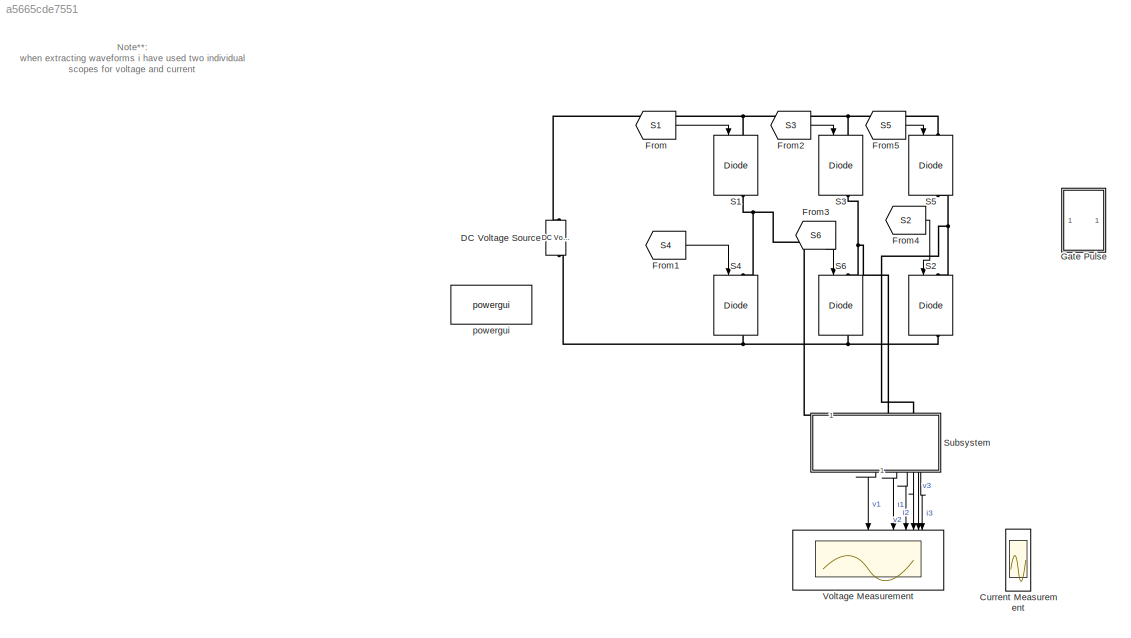
MODEL slx_a5665cde7551
KIND model
CONFIG AbsTol = auto
CONFIG EnableMultiTasking = off
CONFIG FixedStep = auto
CONFIG MaxStep = 1e-6
CONFIG MinStep = auto
CONFIG RelTol = 1e-4
CONFIG SampleTimeConstraint = Unconstrained
CONFIG SolverName = ode23tb
CONFIG StartTime = 0
CONFIG StopTime = 60e-3
BLOCK [Scope] Current Measurement
  Floating = off
  NumInputPorts = 3
  ScopeSpecificationString = Simulink.scopes.TimeScopeBlockCfg('CurrentConfiguration', extmgr.ConfigurationSet(extmgr.Configuration('Core','General UI',true),extmgr.Configuration('Core','Source UI',true),extmgr.Configuration('Sources','WiredSimulink',true,'DataLoggingVariableName','ScopeData1'),extmgr.Configuration('Visuals','Time Domain',true,'SerializedDisplays',{struct('MinYLimReal','-1.00000','MaxYLimReal','1.00000','YLab...<+2915ch>
BLOCK [Reference] DC Voltage Source  REF=spsDCVoltageSourceLib/DC Voltage Source
  LibrarySourceBlock = sps_lib/Sources/DC Voltage Source
  NameLocation = left
  SourceBlock = spsDCVoltageSourceLib/DC Voltage Source
  SourceType = DC Voltage Source
BLOCK [From] From
  GotoTag = S1
  TagVisibility = global
BLOCK [From] From1
  GotoTag = S4
  TagVisibility = global
BLOCK [From] From2
  GotoTag = S3
  TagVisibility = global
BLOCK [From] From3
  GotoTag = S6
  TagVisibility = global
BLOCK [From] From4
  GotoTag = S2
  TagVisibility = global
BLOCK [From] From5
  GotoTag = S5
  TagVisibility = global
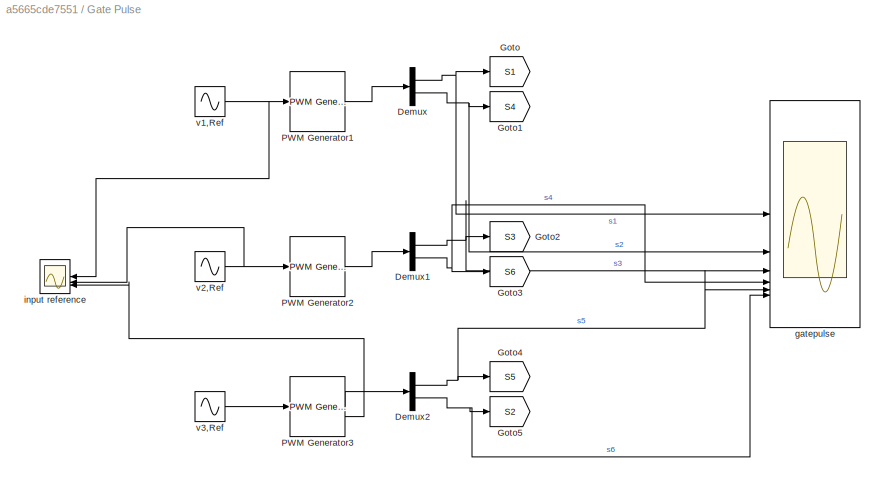
BLOCK [SubSystem] Gate Pulse
BLOCK [Demux] Gate Pulse/Demux
  Outputs = 2
BLOCK [Demux] Gate Pulse/Demux1
  Outputs = 2
BLOCK [Demux] Gate Pulse/Demux2
  Outputs = 2
BLOCK [Goto] Gate Pulse/Goto
  GotoTag = S1
  TagVisibility = global
BLOCK [Goto] Gate Pulse/Goto1
  GotoTag = S4
  TagVisibility = global
BLOCK [Goto] Gate Pulse/Goto2
  GotoTag = S3
  TagVisibility = global
BLOCK [Goto] Gate Pulse/Goto3
  GotoTag = S6
  TagVisibility = global
BLOCK [Goto] Gate Pulse/Goto4
  GotoTag = S5
  TagVisibility = global
BLOCK [Goto] Gate Pulse/Goto5
  GotoTag = S2
  TagVisibility = global
BLOCK [Reference] Gate Pulse/PWM Generator1  REF=spsPWMGenerator2LevelLib/PWM Generator
(2-Level)
  LibrarySourceBlock = sps_lib/Power Electronics/Power Electronics Control/PWM Generator\n(2-Level)
  SourceBlock = spsPWMGenerator2LevelLib/PWM Generator\n(2-Level)
  SourceType = PWM Generator (2-Level)
BLOCK [Reference] Gate Pulse/PWM Generator2  REF=spsPWMGenerator2LevelLib/PWM Generator
(2-Level)
  LibrarySourceBlock = sps_lib/Power Electronics/Power Electronics Control/PWM Generator\n(2-Level)
  SourceBlock = spsPWMGenerator2LevelLib/PWM Generator\n(2-Level)
  SourceType = PWM Generator (2-Level)
BLOCK [Reference] Gate Pulse/PWM Generator3  REF=spsPWMGenerator2LevelLib/PWM Generator
(2-Level)
  LibrarySourceBlock = sps_lib/Power Electronics/Power Electronics Control/PWM Generator\n(2-Level)
  SourceBlock = spsPWMGenerator2LevelLib/PWM Generator\n(2-Level)
  SourceType = PWM Generator (2-Level)
BLOCK [Scope] Gate Pulse/gatepulse
  Floating = off
  NumInputPorts = 6
  ScopeSpecificationString = Simulink.scopes.TimeScopeBlockCfg('CurrentConfiguration', extmgr.ConfigurationSet(extmgr.Configuration('Core','General UI',true,'FigureColor',[1 1 1]),extmgr.Configuration('Core','Source UI',true),extmgr.Configuration('Sources','WiredSimulink',true,'DataLoggingVariableName','ScopeData2'),extmgr.Configuration('Visuals','Time Domain',true,'SerializedDisplays',{struct('MinYLimReal','-0.125','MaxYLimR...<+5497ch>
BLOCK [Scope] Gate Pulse/input reference
  Floating = off
  NameLocation = top
  NumInputPorts = 3
  ScopeSpecificationString = Simulink.scopes.TimeScopeBlockCfg('CurrentConfiguration', extmgr.ConfigurationSet(extmgr.Configuration('Core','General UI',true,'FigureColor',[1 1 1]),extmgr.Configuration('Core','Source UI',true),extmgr.Configuration('Sources','WiredSimulink',true,'DataLoggingVariableName','ScopeData1'),extmgr.Configuration('Visuals','Time Domain',true,'SerializedDisplays',{struct('MinYLimReal','-1.25','MaxYLimRe...<+1954ch>
BLOCK [Sin] Gate Pulse/v1,Ref
  Amplitude = ma
  Frequency = 2*pi*50
  SampleTime = 0
BLOCK [Sin] Gate Pulse/v2,Ref
  Amplitude = ma
  Frequency = 2*50*pi
  Phase = -2*pi/3
  SampleTime = 0
BLOCK [Sin] Gate Pulse/v3,Ref
  Amplitude = ma
  Frequency = 2*pi*50
  Phase = +2*pi/3
  SampleTime = 0
BLOCK [Reference] S1  REF=spsIGBTDiodeLib/IGBT//Diode
  LibrarySourceBlock = sps_lib/Power Electronics/IGBT//Diode
  NameLocation = left
  SourceBlock = spsIGBTDiodeLib/IGBT//Diode
  SourceType = IGBT/Diode
BLOCK [Reference] S2  REF=spsIGBTDiodeLib/IGBT//Diode
  LibrarySourceBlock = sps_lib/Power Electronics/IGBT//Diode
  NameLocation = left
  SourceBlock = spsIGBTDiodeLib/IGBT//Diode
  SourceType = IGBT/Diode
BLOCK [Reference] S3  REF=spsIGBTDiodeLib/IGBT//Diode
  LibrarySourceBlock = sps_lib/Power Electronics/IGBT//Diode
  NameLocation = left
  SourceBlock = spsIGBTDiodeLib/IGBT//Diode
  SourceType = IGBT/Diode
BLOCK [Reference] S4  REF=spsIGBTDiodeLib/IGBT//Diode
  LibrarySourceBlock = sps_lib/Power Electronics/IGBT//Diode
  NameLocation = left
  SourceBlock = spsIGBTDiodeLib/IGBT//Diode
  SourceType = IGBT/Diode
BLOCK [Reference] S5  REF=spsIGBTDiodeLib/IGBT//Diode
  LibrarySourceBlock = sps_lib/Power Electronics/IGBT//Diode
  NameLocation = left
  SourceBlock = spsIGBTDiodeLib/IGBT//Diode
  SourceType = IGBT/Diode
BLOCK [Reference] S6  REF=spsIGBTDiodeLib/IGBT//Diode
  LibrarySourceBlock = sps_lib/Power Electronics/IGBT//Diode
  NameLocation = left
  SourceBlock = spsIGBTDiodeLib/IGBT//Diode
  SourceType = IGBT/Diode
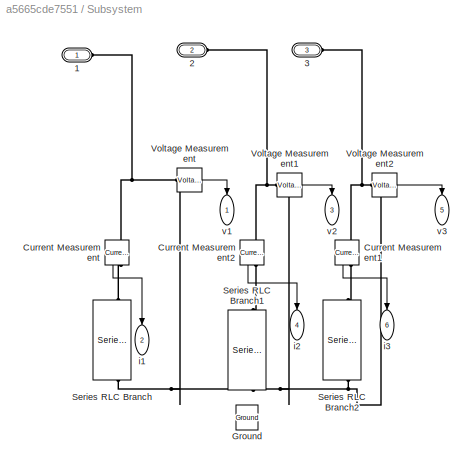
BLOCK [SubSystem] Subsystem
  NameLocation = left
BLOCK [PMIOPort] Subsystem/1
  Side = Left
BLOCK [PMIOPort] Subsystem/2
  Port = 2
  Side = Left
BLOCK [PMIOPort] Subsystem/3
  Port = 3
  Side = Left
BLOCK [Reference] Subsystem/Current Measurement  REF=spsCurrentMeasurementLib/Current Measurement
  LibrarySourceBlock = sps_lib/Sensors and Measurements/Current Measurement
  NameLocation = right
  SourceBlock = spsCurrentMeasurementLib/Current Measurement
  SourceType = Current Measurement
  UserDataPersistent = on
BLOCK [Reference] Subsystem/Current Measurement1  REF=spsCurrentMeasurementLib/Current Measurement
  LibrarySourceBlock = sps_lib/Sensors and Measurements/Current Measurement
  NameLocation = left
  SourceBlock = spsCurrentMeasurementLib/Current Measurement
  SourceType = Current Measurement
  UserDataPersistent = on
BLOCK [Reference] Subsystem/Current Measurement2  REF=spsCurrentMeasurementLib/Current Measurement
  LibrarySourceBlock = sps_lib/Sensors and Measurements/Current Measurement
  NameLocation = left
  SourceBlock = spsCurrentMeasurementLib/Current Measurement
  SourceType = Current Measurement
  UserDataPersistent = on
BLOCK [Reference] Subsystem/Ground  REF=spsGroundLib/Ground
  LibrarySourceBlock = sps_lib/Utilities/Ground
  NameLocation = right
  SourceBlock = spsGroundLib/Ground
  SourceType = Ground
BLOCK [Reference] Subsystem/Series RLC Branch  REF=spsSeriesRLCBranchLib/Series RLC Branch
  LibrarySourceBlock = sps_lib/Passives/Series RLC Branch
  NameLocation = left
  SourceBlock = spsSeriesRLCBranchLib/Series RLC Branch
  SourceType = Series RLC Branch
BLOCK [Reference] Subsystem/Series RLC Branch1  REF=spsSeriesRLCBranchLib/Series RLC Branch
  LibrarySourceBlock = sps_lib/Passives/Series RLC Branch
  NameLocation = left
  SourceBlock = spsSeriesRLCBranchLib/Series RLC Branch
  SourceType = Series RLC Branch
BLOCK [Reference] Subsystem/Series RLC Branch2  REF=spsSeriesRLCBranchLib/Series RLC Branch
  LibrarySourceBlock = sps_lib/Passives/Series RLC Branch
  NameLocation = left
  SourceBlock = spsSeriesRLCBranchLib/Series RLC Branch
  SourceType = Series RLC Branch
BLOCK [Reference] Subsystem/Voltage Measurement  REF=spsVoltageMeasurementLib/Voltage Measurement
  LibrarySourceBlock = sps_lib/Sensors and Measurements/Voltage Measurement
  SourceBlock = spsVoltageMeasurementLib/Voltage Measurement
  SourceType = Voltage Measurement
  UserDataPersistent = on
BLOCK [Reference] Subsystem/Voltage Measurement1  REF=spsVoltageMeasurementLib/Voltage Measurement
  LibrarySourceBlock = sps_lib/Sensors and Measurements/Voltage Measurement
  SourceBlock = spsVoltageMeasurementLib/Voltage Measurement
  SourceType = Voltage Measurement
  UserDataPersistent = on
BLOCK [Reference] Subsystem/Voltage Measurement2  REF=spsVoltageMeasurementLib/Voltage Measurement
  LibrarySourceBlock = sps_lib/Sensors and Measurements/Voltage Measurement
  SourceBlock = spsVoltageMeasurementLib/Voltage Measurement
  SourceType = Voltage Measurement
  UserDataPersistent = on
BLOCK [Outport] Subsystem/i1
  NameLocation = left
  Port = 2
BLOCK [Outport] Subsystem/i2
  NameLocation = left
  Port = 4
BLOCK [Outport] Subsystem/i3
  NameLocation = left
  Port = 6
BLOCK [Outport] Subsystem/v1
  NameLocation = left
BLOCK [Outport] Subsystem/v2
  NameLocation = left
  Port = 3
BLOCK [Outport] Subsystem/v3
  NameLocation = left
  Port = 5
BLOCK [Scope] Voltage Measurement
  Floating = off
  NameLocation = left
  NumInputPorts = 6
  ScopeSpecificationString = Simulink.scopes.TimeScopeBlockCfg('CurrentConfiguration', extmgr.ConfigurationSet(extmgr.Configuration('Core','General UI',true,'FigureColor',[1 1 1]),extmgr.Configuration('Core','Source UI',true),extmgr.Configuration('Sources','WiredSimulink',true,'DataLoggingVariableName','ScopeData1','DataLogging',true,'DataLoggingSaveFormat','StructureWithTime'),extmgr.Configuration('Visuals','Time Domain',tru...<+3504ch>
BLOCK [Reference] powergui  REF=sps_lib/powergui
  LibrarySourceBlock = sps_lib/powergui
  Priority = 1
  SourceBlock = sps_lib/powergui
  SourceType = PSB option menu block
ANNOTATION (root): Note**: when extracting waveforms i have used two individual scopes for voltage and current
LINE From1:1 -> S4:1
LINE From2:1 -> S3:1
LINE From3:1 -> S6:1
LINE From4:1 -> S2:1
LINE From5:1 -> S5:1
LINE From:1 -> S1:1
NET Gate Pulse/Demux1:1 -> Gate Pulse/Goto2:1, Gate Pulse/gatepulse:3
NET Gate Pulse/Demux1:2 -> Gate Pulse/Goto3:1, Gate Pulse/gatepulse:4
NET Gate Pulse/Demux2:1 -> Gate Pulse/Goto4:1, Gate Pulse/gatepulse:5
NET Gate Pulse/Demux2:2 -> Gate Pulse/Goto5:1, Gate Pulse/gatepulse:6
NET Gate Pulse/Demux:1 -> Gate Pulse/Goto:1, Gate Pulse/gatepulse:1
NET Gate Pulse/Demux:2 -> Gate Pulse/Goto1:1, Gate Pulse/gatepulse:2
LINE Gate Pulse/PWM Generator1:1 -> Gate Pulse/Demux:1
LINE Gate Pulse/PWM Generator2:1 -> Gate Pulse/Demux1:1
LINE Gate Pulse/PWM Generator3:1 -> Gate Pulse/Demux2:1
LINE Gate Pulse/PWM Generator3:2 -> Gate Pulse/input reference:3
NET Gate Pulse/v1,Ref:1 -> Gate Pulse/PWM Generator1:1, Gate Pulse/input reference:1
NET Gate Pulse/v2,Ref:1 -> Gate Pulse/PWM Generator2:1, Gate Pulse/input reference:2
LINE Gate Pulse/v3,Ref:1 -> Gate Pulse/PWM Generator3:1
LINE Subsystem/Current Measurement1:1 -> Subsystem/i3:1
LINE Subsystem/Current Measurement2:1 -> Subsystem/i2:1
LINE Subsystem/Current Measurement:1 -> Subsystem/i1:1
LINE Subsystem/Voltage Measurement1:1 -> Subsystem/v2:1
LINE Subsystem/Voltage Measurement2:1 -> Subsystem/v3:1
LINE Subsystem/Voltage Measurement:1 -> Subsystem/v1:1
LINE Subsystem:1 -> Voltage Measurement:1
LINE Subsystem:2 -> Voltage Measurement:2
LINE Subsystem:3 -> Voltage Measurement:3
LINE Subsystem:4 -> Voltage Measurement:4
LINE Subsystem:5 -> Voltage Measurement:5
LINE Subsystem:6 -> Voltage Measurement:6
PNET net1: DC Voltage Source:LConn1 -- S2:RConn1 -- S4:RConn1 -- S6:RConn1
PNET net2: DC Voltage Source:RConn1 -- S1:LConn1 -- S3:LConn1 -- S5:LConn1
PNET net3: S1:RConn1 -- S4:LConn1 -- Subsystem:LConn1
PNET net4: S2:LConn1 -- S5:RConn1 -- Subsystem:LConn3
PNET net5: S3:RConn1 -- S6:LConn1 -- Subsystem:LConn2
PNET net6: Subsystem/1:RConn1 -- Subsystem/Current Measurement:LConn1 -- Subsystem/Voltage Measurement:LConn1
PNET net7: Subsystem/2:RConn1 -- Subsystem/Current Measurement2:LConn1 -- Subsystem/Voltage Measurement1:LConn1
PNET net8: Subsystem/3:RConn1 -- Subsystem/Current Measurement1:LConn1 -- Subsystem/Voltage Measurement2:LConn1
PLINE Subsystem/Current Measurement1:RConn1 -- Subsystem/Series RLC Branch2:LConn1
PLINE Subsystem/Current Measurement2:RConn1 -- Subsystem/Series RLC Branch1:LConn1
PLINE Subsystem/Current Measurement:RConn1 -- Subsystem/Series RLC Branch:LConn1
PNET net9: Subsystem/Series RLC Branch1:RConn1 -- Subsystem/Series RLC Branch2:RConn1 -- Subsystem/Series RLC Branch:RConn1 -- Subsystem/Voltage Measurement1:LConn2 -- Subsystem/Voltage Measurement2:LConn2 -- Subsystem/Voltage Measurement:LConn2
note: NET lines group one-source signal fan-out (src -> all destinations, sorted); 1:1 wires keep LINE; PNET lines group multi-terminal physical nets as a canonical sorted terminal list (undirected conserving connections); 2-terminal nets keep the pairwise PLINE form
